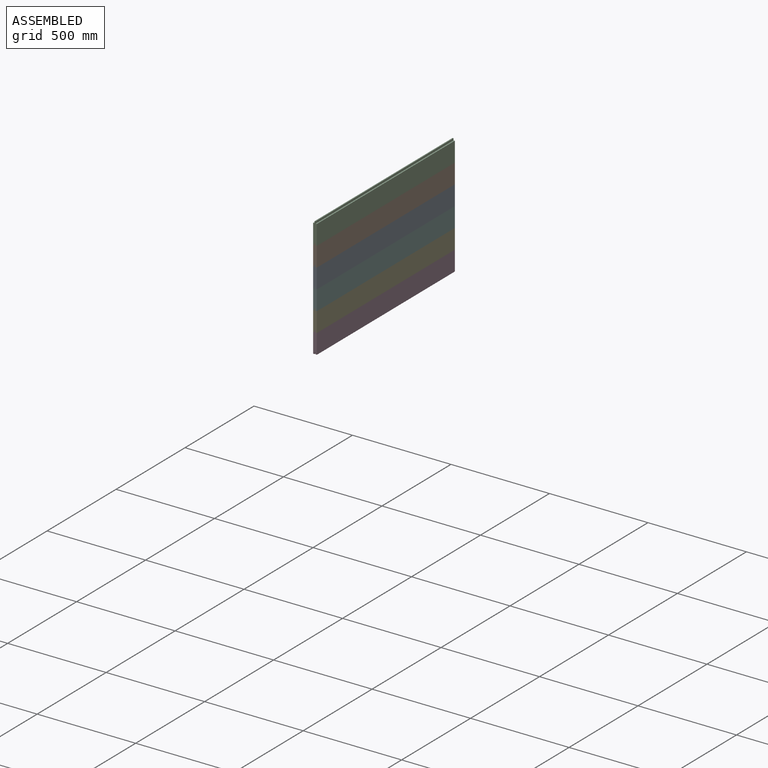
[diagram: assembled view]
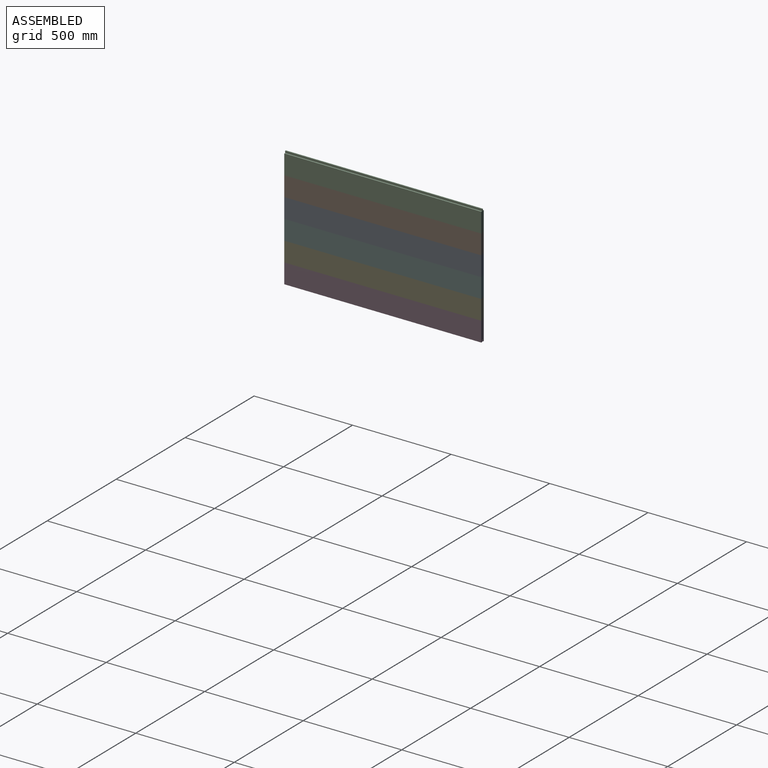
[diagram: assembled view, second angle]
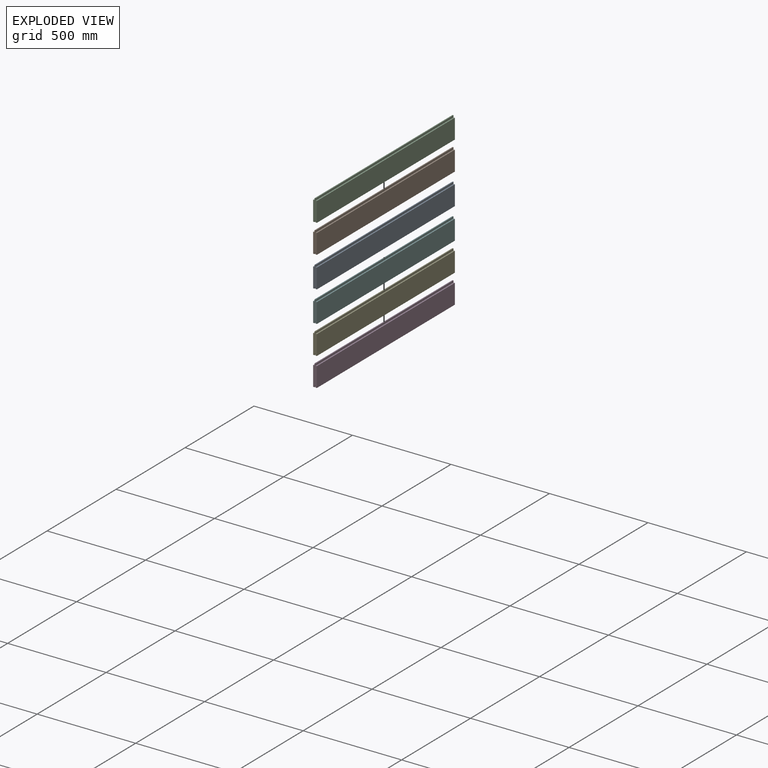
[diagram: exploded view]
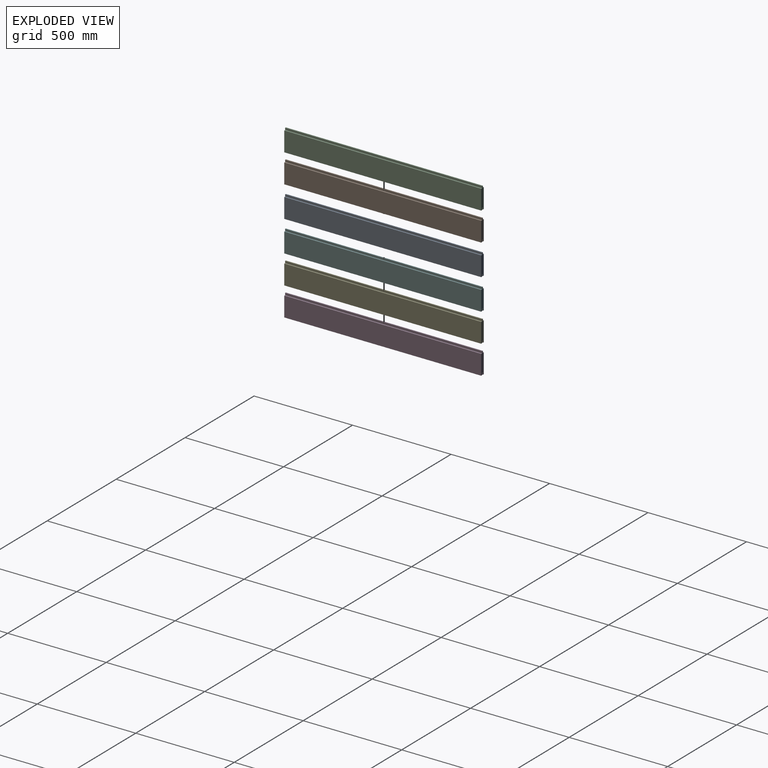
[diagram: exploded view, second angle]
ASSEMBLY  parts=6 mates=5
PART A: 14 faces, bbox 19x1000x110 mm
  f0: plane 1000x100mm, normal (-1,0,0), area 100000mm2, adj f1,f11,f12,f13
  f1: plane 1000x7mm, normal (0,0,-1), area 7000mm2, adj f0,f2,f12,f13
  f2: plane 1000x10mm, normal (1,0,0), area 10000mm2, adj f1,f3,f12,f13
  f3: plane 1000x5mm, normal (0,0,-1), area 5000mm2, adj f2,f4,f12,f13
  f4: plane 1000x10mm, normal (-1,0,0), area 10000mm2, adj f3,f5,f12,f13
  f5: plane 1000x7mm, normal (0,0,-1), area 7000mm2, adj f4,f6,f12,f13
  f6: plane 1000x100mm, normal (1,0,0), area 100000mm2, adj f5,f7,f12,f13
  f7: plane 1000x7mm, normal (0,0,1), area 7000mm2, adj f6,f8,f12,f13
  f8: plane 1000x10mm, normal (1,0,0), area 10000mm2, adj f7,f9,f12,f13
  f9: plane 1000x5mm, normal (0,0,1), area 5000mm2, adj f8,f10,f12,f13
  f10: plane 1000x10mm, normal (-1,0,0), area 10000mm2, adj f9,f11,f12,f13
  f11: plane 1000x7mm, normal (0,0,1), area 7000mm2, adj f0,f10,f12,f13
  f12: plane 110x19mm, normal (0,1,0), area 1900mm2, adj f0,f1,f2,f3,f4,f5,f6,f7
  f13: plane 110x19mm, normal (0,-1,0), area 1900mm2, adj f0,f1,f2,f3,f4,f5,f6,f7
PART B: same geometry as A
PART C: same geometry as A
PART D: same geometry as A
PART E: same geometry as A
PART F: same geometry as A
PLACE A t=(-497.14,-431,308.07)mm
PLACE B t=(-497.14,-431,408.07)mm
PLACE C t=(-497.14,-431,508.07)mm
PLACE D t=(-497.14,-431,8.07)mm
PLACE E t=(-497.14,-431,108.07)mm
PLACE F t=(-497.14,-431,208.07)mm
MATE fastened B.f3 <-> A.f9  axis (0,0,-1) through (-487.64,69,418.07)mm
MATE fastened D.f9 <-> E.f3  axis (0,0,1) through (-487.64,69,118.07)mm
MATE fastened E.f9 <-> F.f3  axis (0,0,1) through (-487.64,69,218.07)mm
MATE fastened C.f3 <-> B.f9  axis (0,0,-1) through (-487.64,69,518.07)mm
MATE fastened A.f3 <-> F.f9  axis (0,0,-1) through (-487.64,69,318.07)mm
